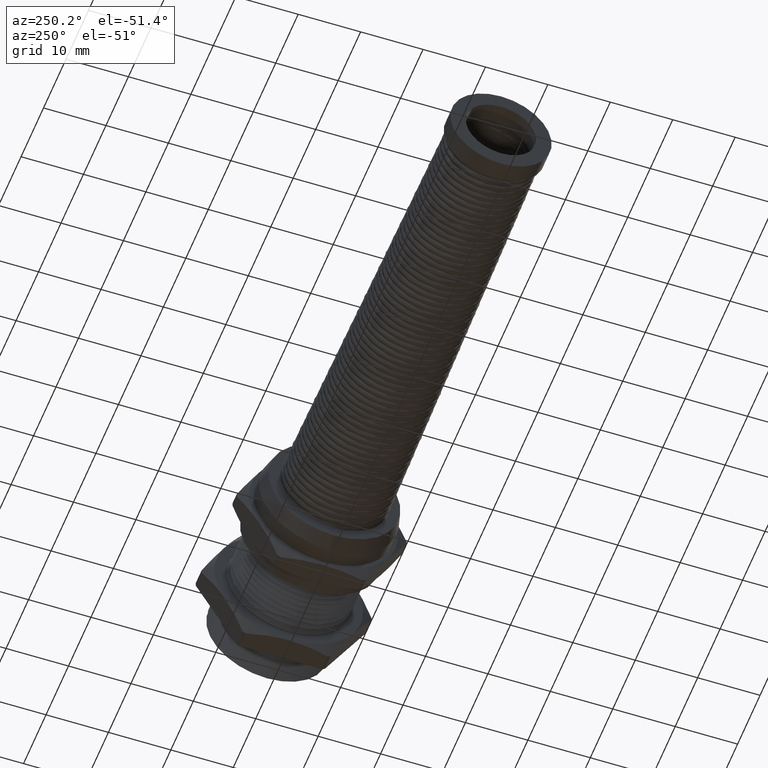
[diagram: clean part render]
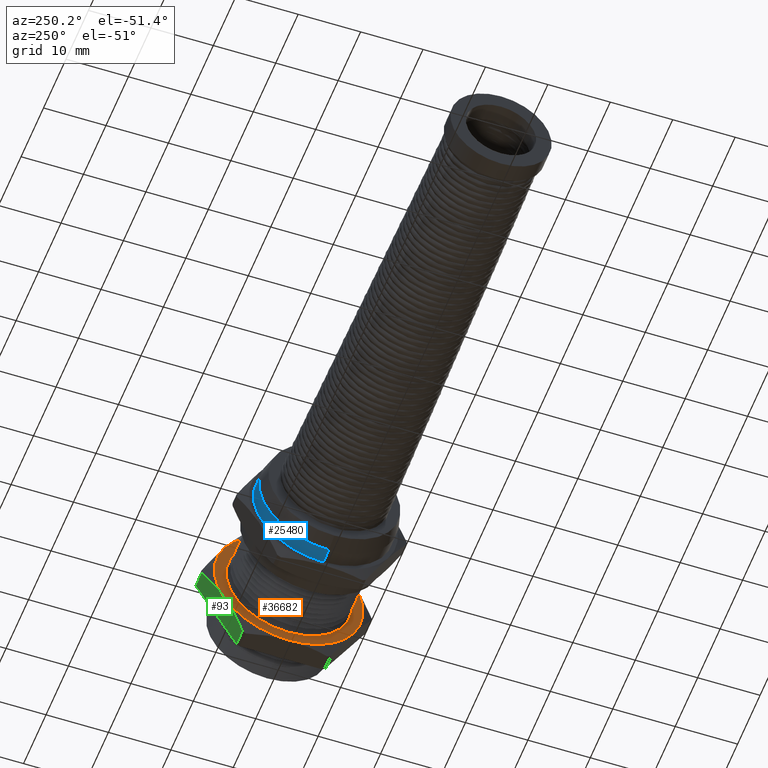
[diagram: same view with three faces highlighted in distinct colors, each labeled with its STEP entity id]
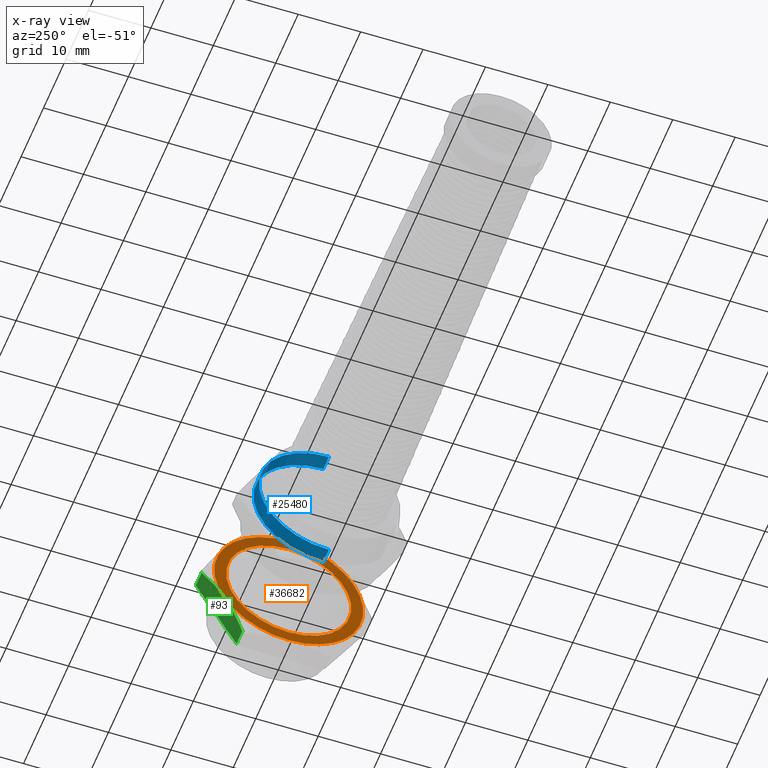
[diagram: x-ray of the same camera — body ghosted, the three highlighted faces saturated]
A machine part, auxiliary view with three faces highlighted in distinct colors.
The next image is the same camera in x-ray (body ghosted, the three faces saturated) — at least one of them is partly hidden behind the body in this view.
Their STEP definitions:

[orange] entity #36682 — the highlighted planar face has unit normal (1, 0, 0).
#1320 = VERTEX_POINT ( 'NONE', #26757 ) ;
#2545 = VERTEX_POINT ( 'NONE', #2891 ) ;
#2548 = EDGE_CURVE ( 'NONE', #1320, #2545, #2888, .T. ) ;
#2879 = DIRECTION ( 'NONE',  ( 0.0000000000000000000, 0.0000000000000000000, 1.000000000000000000 ) ) ;
#2881 = DIRECTION ( 'NONE',  ( -1.000000000000000000, 0.0000000000000000000, 0.0000000000000000000 ) ) ;
#2882 = CARTESIAN_POINT ( 'NONE',  ( 0.2089999999999998800, 0.0000000000000000000, 0.0000000000000000000 ) ) ;
#2883 = AXIS2_PLACEMENT_3D ( 'NONE', #2882, #2881, #2879 ) ;
#2888 = CIRCLE ( 'NONE', #2883, 0.3950000000000000200 ) ;
#2891 = CARTESIAN_POINT ( 'NONE',  ( 0.2089999999999998800, 4.837354856632045600E-017, -0.3950000000000000200 ) ) ;
#5343 = EDGE_CURVE ( 'NONE', #2545, #1320, #27123, .T. ) ;
#25288 = CARTESIAN_POINT ( 'NONE',  ( 0.2089999999999999400, 0.4070319397786861200, 0.2350000000000001000 ) ) ;
#25289 = DIRECTION ( 'NONE',  ( 0.0000000000000000000, 0.0000000000000000000, 1.000000000000000000 ) ) ;
#25290 = DIRECTION ( 'NONE',  ( -1.000000000000000000, 0.0000000000000000000, 0.0000000000000000000 ) ) ;
#25291 = CARTESIAN_POINT ( 'NONE',  ( 0.2089999999999999400, 0.0000000000000000000, 0.0000000000000000000 ) ) ;
#25292 = AXIS2_PLACEMENT_3D ( 'NONE', #25291, #25290, #25289 ) ;
#25293 = CIRCLE ( 'NONE', #25292, 0.4699999999999999700 ) ;
#25294 = CARTESIAN_POINT ( 'NONE',  ( 0.2089999999999999400, 0.0000000000000000000, -0.4699999999999999200 ) ) ;
#25295 = DIRECTION ( 'NONE',  ( 0.0000000000000000000, 0.0000000000000000000, 1.000000000000000000 ) ) ;
#25296 = DIRECTION ( 'NONE',  ( -1.000000000000000000, 0.0000000000000000000, 0.0000000000000000000 ) ) ;
#25297 = CARTESIAN_POINT ( 'NONE',  ( 0.2089999999999999400, 0.0000000000000000000, 0.0000000000000000000 ) ) ;
#25298 = AXIS2_PLACEMENT_3D ( 'NONE', #25297, #25296, #25295 ) ;
#25299 = CIRCLE ( 'NONE', #25298, 0.4699999999999999700 ) ;
#25310 = CARTESIAN_POINT ( 'NONE',  ( 0.2089999999999999400, -0.4070319397786861200, 0.2350000000000001000 ) ) ;
#26757 = CARTESIAN_POINT ( 'NONE',  ( 0.2089999999999998800, 0.0000000000000000000, 0.3950000000000000200 ) ) ;
#27119 = DIRECTION ( 'NONE',  ( 0.0000000000000000000, 0.0000000000000000000, 1.000000000000000000 ) ) ;
#27120 = DIRECTION ( 'NONE',  ( -1.000000000000000000, 0.0000000000000000000, 0.0000000000000000000 ) ) ;
#27121 = CARTESIAN_POINT ( 'NONE',  ( 0.2089999999999998800, 0.0000000000000000000, 0.0000000000000000000 ) ) ;
#27122 = AXIS2_PLACEMENT_3D ( 'NONE', #27121, #27120, #27119 ) ;
#27123 = CIRCLE ( 'NONE', #27122, 0.3950000000000000200 ) ;
#28411 = DIRECTION ( 'NONE',  ( 0.0000000000000000000, 0.0000000000000000000, 1.000000000000000000 ) ) ;
#28412 = DIRECTION ( 'NONE',  ( -1.000000000000000000, 0.0000000000000000000, 0.0000000000000000000 ) ) ;
#28413 = CARTESIAN_POINT ( 'NONE',  ( 0.2089999999999999400, 0.0000000000000000000, 0.0000000000000000000 ) ) ;
#28414 = AXIS2_PLACEMENT_3D ( 'NONE', #28413, #28412, #28411 ) ;
#28415 = CIRCLE ( 'NONE', #28414, 0.4699999999999999700 ) ;
#28461 = DIRECTION ( 'NONE',  ( 0.0000000000000000000, 0.0000000000000000000, -1.000000000000000000 ) ) ;
#28462 = DIRECTION ( 'NONE',  ( 1.000000000000000000, 0.0000000000000000000, 0.0000000000000000000 ) ) ;
#28463 = CARTESIAN_POINT ( 'NONE',  ( 0.2089999999999999400, 0.3950000000000000200, 0.0000000000000000000 ) ) ;
#28464 = AXIS2_PLACEMENT_3D ( 'NONE', #28463, #28462, #28461 ) ;
#28465 = FACE_OUTER_BOUND ( 'NONE', #36947, .T. ) ;
#28466 = FACE_BOUND ( 'NONE', #36915, .T. ) ;
#28472 = PLANE ( 'NONE',  #28464 ) ;
#28480 = CARTESIAN_POINT ( 'NONE',  ( 0.2089999999999999400, -0.4070319397786861800, -0.2350000000000001000 ) ) ;
#28481 = DIRECTION ( 'NONE',  ( 0.0000000000000000000, 0.0000000000000000000, 1.000000000000000000 ) ) ;
#28482 = DIRECTION ( 'NONE',  ( -1.000000000000000000, 0.0000000000000000000, 0.0000000000000000000 ) ) ;
#28483 = CARTESIAN_POINT ( 'NONE',  ( 0.2089999999999999400, 0.0000000000000000000, 0.0000000000000000000 ) ) ;
#28484 = AXIS2_PLACEMENT_3D ( 'NONE', #28483, #28482, #28481 ) ;
#28485 = CIRCLE ( 'NONE', #28484, 0.4699999999999999700 ) ;
#28518 = DIRECTION ( 'NONE',  ( 0.0000000000000000000, 0.0000000000000000000, 1.000000000000000000 ) ) ;
#28519 = DIRECTION ( 'NONE',  ( -1.000000000000000000, 0.0000000000000000000, 0.0000000000000000000 ) ) ;
#28520 = CARTESIAN_POINT ( 'NONE',  ( 0.2089999999999999400, 0.0000000000000000000, 0.0000000000000000000 ) ) ;
#28521 = AXIS2_PLACEMENT_3D ( 'NONE', #28520, #28519, #28518 ) ;
#28522 = CIRCLE ( 'NONE', #28521, 0.4699999999999999700 ) ;
#28523 = CARTESIAN_POINT ( 'NONE',  ( 0.2089999999999999400, 0.0000000000000000000, 0.4699999999999999200 ) ) ;
#28553 = DIRECTION ( 'NONE',  ( 0.0000000000000000000, 0.0000000000000000000, 1.000000000000000000 ) ) ;
#28554 = DIRECTION ( 'NONE',  ( -1.000000000000000000, 0.0000000000000000000, 0.0000000000000000000 ) ) ;
#28555 = CARTESIAN_POINT ( 'NONE',  ( 0.2089999999999999400, 0.0000000000000000000, 0.0000000000000000000 ) ) ;
#28556 = AXIS2_PLACEMENT_3D ( 'NONE', #28555, #28554, #28553 ) ;
#28557 = CIRCLE ( 'NONE', #28556, 0.4699999999999999700 ) ;
#28881 = CARTESIAN_POINT ( 'NONE',  ( 0.2089999999999999400, 0.4070319397786860100, -0.2349999999999999900 ) ) ;
#36446 = ORIENTED_EDGE ( 'NONE', *, *, #36719, .T. ) ;
#36600 = ORIENTED_EDGE ( 'NONE', *, *, #2548, .F. ) ;
#36676 = ORIENTED_EDGE ( 'NONE', *, *, #36736, .T. ) ;
#36679 = EDGE_CURVE ( 'NONE', #36708, #36921, #28415, .T. ) ;
#36682 = ADVANCED_FACE ( 'NONE', ( #28466, #28465 ), #28472, .F. ) ;
#36687 = ORIENTED_EDGE ( 'NONE', *, *, #36679, .T. ) ;
#36691 = ORIENTED_EDGE ( 'NONE', *, *, #36705, .T. ) ;
#36705 = EDGE_CURVE ( 'NONE', #36942, #36931, #28485, .T. ) ;
#36708 = VERTEX_POINT ( 'NONE', #28480 ) ;
#36719 = EDGE_CURVE ( 'NONE', #36931, #36708, #28522, .T. ) ;
#36721 = VERTEX_POINT ( 'NONE', #28523 ) ;
#36736 = EDGE_CURVE ( 'NONE', #36921, #36721, #28557, .T. ) ;
#36738 = ORIENTED_EDGE ( 'NONE', *, *, #36927, .T. ) ;
#36915 = EDGE_LOOP ( 'NONE', ( #36600, #36939 ) ) ;
#36921 = VERTEX_POINT ( 'NONE', #25310 ) ;
#36927 = EDGE_CURVE ( 'NONE', #36721, #36932, #25299, .T. ) ;
#36929 = EDGE_CURVE ( 'NONE', #36932, #36942, #25293, .T. ) ;
#36930 = ORIENTED_EDGE ( 'NONE', *, *, #36929, .T. ) ;
#36931 = VERTEX_POINT ( 'NONE', #25294 ) ;
#36932 = VERTEX_POINT ( 'NONE', #25288 ) ;
#36939 = ORIENTED_EDGE ( 'NONE', *, *, #5343, .F. ) ;
#36942 = VERTEX_POINT ( 'NONE', #28881 ) ;
#36947 = EDGE_LOOP ( 'NONE', ( #36691, #36446, #36687, #36676, #36738, #36930 ) ) ;

[blue] entity #25480 — the highlighted cylindrical surface (partial cylindrical patch) has radius 11.2277 mm, axis along (-1, 0, 0).
#18618 = EDGE_LOOP ( 'NONE', ( #25546, #19365, #25524, #18893 ) ) ;
#18721 = EDGE_CURVE ( 'NONE', #25548, #25492, #27872, .T. ) ;
#18893 = ORIENTED_EDGE ( 'NONE', *, *, #18902, .F. ) ;
#18902 = EDGE_CURVE ( 'NONE', #25548, #30590, #27867, .T. ) ;
#18998 = EDGE_CURVE ( 'NONE', #25492, #29779, #27863, .T. ) ;
#19365 = ORIENTED_EDGE ( 'NONE', *, *, #18998, .T. ) ;
#25480 = ADVANCED_FACE ( 'NONE', ( #28009 ), #28008, .T. ) ;
#25492 = VERTEX_POINT ( 'NONE', #28054 ) ;
#25524 = ORIENTED_EDGE ( 'NONE', *, *, #29486, .T. ) ;
#25546 = ORIENTED_EDGE ( 'NONE', *, *, #18721, .T. ) ;
#25548 = VERTEX_POINT ( 'NONE', #28140 ) ;
#27860 = DIRECTION ( 'NONE',  ( -1.000000000000000000, 0.0000000000000000000, 0.0000000000000000000 ) ) ;
#27861 = VECTOR ( 'NONE', #27860, 39.37007874015748100 ) ;
#27862 = CARTESIAN_POINT ( 'NONE',  ( -2.719493435091831800, 5.413367478611002500E-017, -0.4420349999999999600 ) ) ;
#27863 = LINE ( 'NONE', #27862, #27861 ) ;
#27864 = DIRECTION ( 'NONE',  ( -1.000000000000000000, 0.0000000000000000000, 0.0000000000000000000 ) ) ;
#27865 = VECTOR ( 'NONE', #27864, 39.37007874015748100 ) ;
#27866 = CARTESIAN_POINT ( 'NONE',  ( -2.719493435091831800, 0.0000000000000000000, 0.4420349999999999600 ) ) ;
#27867 = LINE ( 'NONE', #27866, #27865 ) ;
#27868 = DIRECTION ( 'NONE',  ( 0.0000000000000000000, 0.0000000000000000000, 1.000000000000000000 ) ) ;
#27869 = DIRECTION ( 'NONE',  ( -1.000000000000000000, 0.0000000000000000000, 0.0000000000000000000 ) ) ;
#27870 = CARTESIAN_POINT ( 'NONE',  ( -0.3979999999999999600, 0.0000000000000000000, 0.0000000000000000000 ) ) ;
#27871 = AXIS2_PLACEMENT_3D ( 'NONE', #27870, #27869, #27868 ) ;
#27872 = CIRCLE ( 'NONE', #27871, 0.4420349999999999600 ) ;
#28003 = DIRECTION ( 'NONE',  ( 0.0000000000000000000, 0.0000000000000000000, 1.000000000000000000 ) ) ;
#28004 = DIRECTION ( 'NONE',  ( -1.000000000000000000, 0.0000000000000000000, 0.0000000000000000000 ) ) ;
#28005 = CARTESIAN_POINT ( 'NONE',  ( -2.719493435091831800, 0.0000000000000000000, 0.0000000000000000000 ) ) ;
#28006 = AXIS2_PLACEMENT_3D ( 'NONE', #28005, #28004, #28003 ) ;
#28008 = CYLINDRICAL_SURFACE ( 'NONE', #28006, 0.4420349999999999600 ) ;
#28009 = FACE_OUTER_BOUND ( 'NONE', #18618, .T. ) ;
#28054 = CARTESIAN_POINT ( 'NONE',  ( -0.3979999999999999600, 5.413367478611002500E-017, -0.4420349999999999600 ) ) ;
#28140 = CARTESIAN_POINT ( 'NONE',  ( -0.3979999999999999600, 0.0000000000000000000, 0.4420349999999999600 ) ) ;
#28289 = DIRECTION ( 'NONE',  ( 0.0000000000000000000, 0.0000000000000000000, -1.000000000000000000 ) ) ;
#28290 = DIRECTION ( 'NONE',  ( 1.000000000000000000, 0.0000000000000000000, 0.0000000000000000000 ) ) ;
#28292 = CARTESIAN_POINT ( 'NONE',  ( -0.4959999999999990500, 0.0000000000000000000, 0.0000000000000000000 ) ) ;
#28293 = AXIS2_PLACEMENT_3D ( 'NONE', #28292, #28290, #28289 ) ;
#28294 = CIRCLE ( 'NONE', #28293, 0.4420349999999999600 ) ;
#28324 = CARTESIAN_POINT ( 'NONE',  ( -0.4959999999999990500, 0.0000000000000000000, 0.4420349999999999600 ) ) ;
#28342 = CARTESIAN_POINT ( 'NONE',  ( -0.4959999999999990500, 5.413367478611002500E-017, -0.4420349999999999600 ) ) ;
#29486 = EDGE_CURVE ( 'NONE', #29779, #30590, #28294, .T. ) ;
#29779 = VERTEX_POINT ( 'NONE', #28342 ) ;
#30590 = VERTEX_POINT ( 'NONE', #28324 ) ;

[green] entity #93 — the highlighted planar face has unit normal (0, 0.866, -0.5).
#5 = ORIENTED_EDGE ( 'NONE', *, *, #19, .T. ) ;
#7 = ORIENTED_EDGE ( 'NONE', *, *, #36423, .F. ) ;
#9 = ORIENTED_EDGE ( 'NONE', *, *, #25514, .F. ) ;
#17 = EDGE_LOOP ( 'NONE', ( #7, #5, #20, #36979, #9 ) ) ;
#19 = EDGE_CURVE ( 'NONE', #24, #36942, #187, .T. ) ;
#20 = ORIENTED_EDGE ( 'NONE', *, *, #21, .T. ) ;
#21 = EDGE_CURVE ( 'NONE', #36942, #10822, #179, .T. ) ;
#24 = VERTEX_POINT ( 'NONE', #202 ) ;
#93 = ADVANCED_FACE ( 'NONE', ( #26641 ), #26640, .T. ) ;
#143 = EDGE_CURVE ( 'NONE', #10822, #25537, #26731, .T. ) ;
#179 = B_SPLINE_CURVE_WITH_KNOTS ( 'NONE', 3,
 ( #215, #214, #213, #212, #211, #210, #209, #208 ),
 .UNSPECIFIED., .F., .F.,
 ( 4, 2, 2, 4 ),
 ( 0.006604474637010329000, 0.008246803920736314000, 0.009889133204462299100, 0.01317379177191426600 ),
 .UNSPECIFIED. ) ;
#180 = CARTESIAN_POINT ( 'NONE',  ( 0.2089999999999999400, 0.4070319397786860100, -0.2349999999999999900 ) ) ;
#181 = CARTESIAN_POINT ( 'NONE',  ( 0.2089999999999998500, 0.3851817699083017200, -0.2728456043695162700 ) ) ;
#182 = CARTESIAN_POINT ( 'NONE',  ( 0.2125710182093069100, 0.3635639728030156100, -0.3102887273035872000 ) ) ;
#183 = CARTESIAN_POINT ( 'NONE',  ( 0.2257386170112252500, 0.3207204730904860100, -0.3844958455797512500 ) ) ;
#184 = CARTESIAN_POINT ( 'NONE',  ( 0.2352973929361640800, 0.2994923104635376400, -0.4212641018009603000 ) ) ;
#185 = CARTESIAN_POINT ( 'NONE',  ( 0.2469896477126770100, 0.2784029772546883800, -0.4577918984164368600 ) ) ;
#187 = B_SPLINE_CURVE_WITH_KNOTS ( 'NONE', 3,
 ( #185, #184, #183, #182, #181, #180 ),
 .UNSPECIFIED., .F., .F.,
 ( 4, 2, 4 ),
 ( 2.372708752618816500E-007, 0.003302355953942795700, 0.006604474637010329000 ),
 .UNSPECIFIED. ) ;
#202 = CARTESIAN_POINT ( 'NONE',  ( 0.2469896477126770100, 0.2784029772546883800, -0.4577918984164368600 ) ) ;
#208 = CARTESIAN_POINT ( 'NONE',  ( 0.2469896477126770600, 0.5356609023026838200, -0.01220810158356293500 ) ) ;
#209 = CARTESIAN_POINT ( 'NONE',  ( 0.2353394390296649800, 0.5146474076803800900, -0.04860454191396852700 ) ) ;
#210 = CARTESIAN_POINT ( 'NONE',  ( 0.2257851093317748100, 0.4934610851260749500, -0.08530032900356715500 ) ) ;
#211 = CARTESIAN_POINT ( 'NONE',  ( 0.2158900616425381300, 0.4613157681805519200, -0.1409776511786176900 ) ) ;
#212 = CARTESIAN_POINT ( 'NONE',  ( 0.2133324694163246700, 0.4505395790907079600, -0.1596425581941969300 ) ) ;
#213 = CARTESIAN_POINT ( 'NONE',  ( 0.2098845619980237700, 0.4288497158539501000, -0.1972105033294819800 ) ) ;
#214 = CARTESIAN_POINT ( 'NONE',  ( 0.2089999999999998800, 0.4178992577877357300, -0.2161772530663176900 ) ) ;
#215 = CARTESIAN_POINT ( 'NONE',  ( 0.2089999999999999400, 0.4070319397786860100, -0.2349999999999999900 ) ) ;
#10822 = VERTEX_POINT ( 'NONE', #27851 ) ;
#25483 = VERTEX_POINT ( 'NONE', #28001 ) ;
#25514 = EDGE_CURVE ( 'NONE', #25483, #25537, #28076, .T. ) ;
#25537 = VERTEX_POINT ( 'NONE', #28104 ) ;
#26636 = DIRECTION ( 'NONE',  ( 0.0000000000000000000, 0.5000000000000000000, 0.8660254037844386000 ) ) ;
#26637 = DIRECTION ( 'NONE',  ( 0.0000000000000000000, 0.8660254037844387100, -0.5000000000000001100 ) ) ;
#26638 = CARTESIAN_POINT ( 'NONE',  ( -1.928625965973398900, 0.2784029772546883800, -0.4577918984164369200 ) ) ;
#26639 = AXIS2_PLACEMENT_3D ( 'NONE', #26638, #26637, #26636 ) ;
#26640 = PLANE ( 'NONE',  #26639 ) ;
#26641 = FACE_OUTER_BOUND ( 'NONE', #17, .T. ) ;
#26723 = DIRECTION ( 'NONE',  ( 1.000000000000000000, 0.0000000000000000000, 0.0000000000000000000 ) ) ;
#26724 = VECTOR ( 'NONE', #26723, 39.37007874015748100 ) ;
#26725 = CARTESIAN_POINT ( 'NONE',  ( -1.928625965973398900, 0.5356609023026837100, -0.01220810158356293100 ) ) ;
#26731 = LINE ( 'NONE', #26725, #26724 ) ;
#27851 = CARTESIAN_POINT ( 'NONE',  ( 0.2469896477126770600, 0.5356609023026838200, -0.01220810158356293500 ) ) ;
#28001 = CARTESIAN_POINT ( 'NONE',  ( 0.3499999999999999800, 0.2784029772546883800, -0.4577918984164368600 ) ) ;
#28073 = DIRECTION ( 'NONE',  ( 0.0000000000000000000, 0.5000000000000000000, 0.8660254037844386000 ) ) ;
#28074 = VECTOR ( 'NONE', #28073, 39.37007874015748900 ) ;
#28075 = CARTESIAN_POINT ( 'NONE',  ( 0.3499999999999999800, 0.2784029772546883800, -0.4577918984164369200 ) ) ;
#28076 = LINE ( 'NONE', #28075, #28074 ) ;
#28104 = CARTESIAN_POINT ( 'NONE',  ( 0.3499999999999998100, 0.5356609023026838200, -0.01220810158356293500 ) ) ;
#28420 = DIRECTION ( 'NONE',  ( 1.000000000000000000, 0.0000000000000000000, 0.0000000000000000000 ) ) ;
#28421 = VECTOR ( 'NONE', #28420, 39.37007874015748100 ) ;
#28422 = CARTESIAN_POINT ( 'NONE',  ( -1.928625965973398900, 0.2784029772546883800, -0.4577918984164368600 ) ) ;
#28423 = LINE ( 'NONE', #28422, #28421 ) ;
#28881 = CARTESIAN_POINT ( 'NONE',  ( 0.2089999999999999400, 0.4070319397786860100, -0.2349999999999999900 ) ) ;
#36423 = EDGE_CURVE ( 'NONE', #24, #25483, #28423, .T. ) ;
#36942 = VERTEX_POINT ( 'NONE', #28881 ) ;
#36979 = ORIENTED_EDGE ( 'NONE', *, *, #143, .T. ) ;